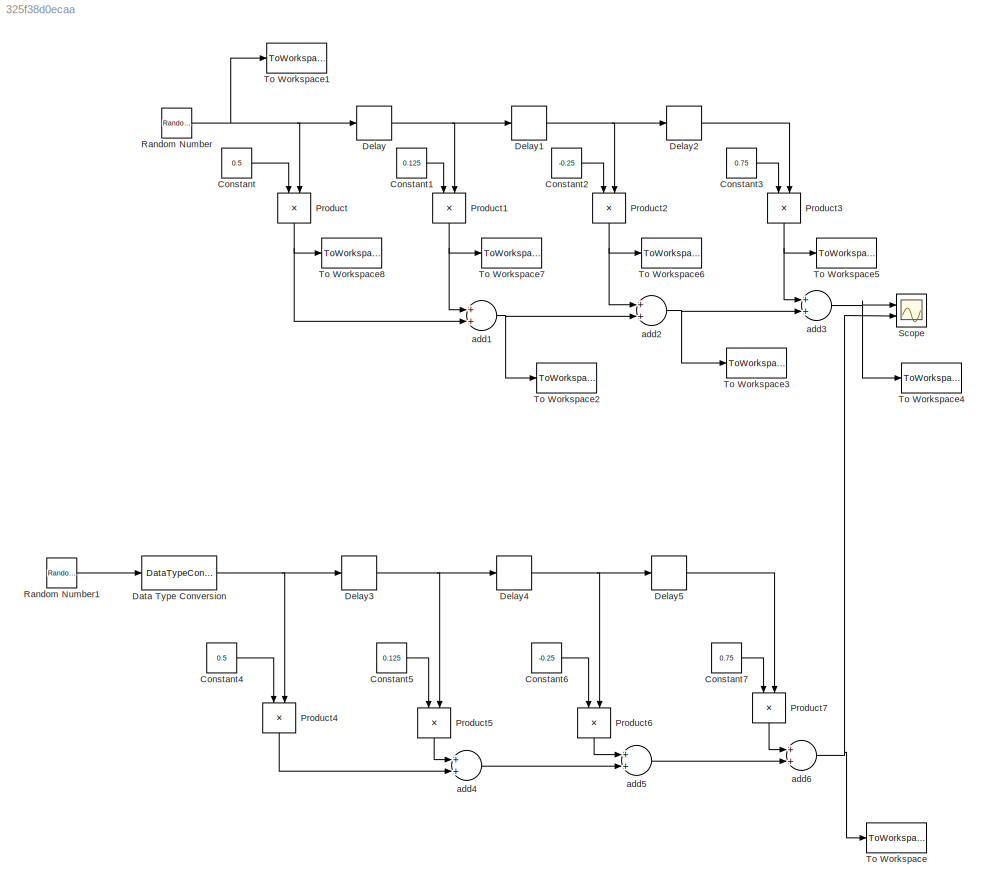
MODEL slx_325f38d0ecaa
KIND model
CONFIG AbsTol = auto
CONFIG EnableMultiTasking = off
CONFIG FixedStep = auto
CONFIG MaxStep = auto
CONFIG MinStep = auto
CONFIG RelTol = 1e-3
CONFIG SampleTimeConstraint = Unconstrained
CONFIG Solver = VariableStepAuto
CONFIG SolverName = VariableStepAuto
CONFIG StartTime = 0.0
CONFIG StopTime = 10.0
BLOCK [Constant] Constant
  Value = 0.5
BLOCK [Constant] Constant1
  Value = 0.125
BLOCK [Constant] Constant2
  Value = -0.25
BLOCK [Constant] Constant3
  Value = 0.75
BLOCK [Constant] Constant4
  OutDataTypeStr = fixdt(0,1,1)
  Value = 0.5
BLOCK [Constant] Constant5
  OutDataTypeStr = fixdt(0,3,3)
  Value = 0.125
BLOCK [Constant] Constant6
  OutDataTypeStr = fixdt(1,3,2)
  Value = -0.25
BLOCK [Constant] Constant7
  OutDataTypeStr = fixdt(0,2,2)
  Value = 0.75
BLOCK [DataTypeConversion] Data Type Conversion
  OutDataTypeStr = fixdt(1,8,5)
  RndMeth = Floor
  SaturateOnIntegerOverflow = off
BLOCK [Delay] Delay
  DelayLength = 1
  InputPortMap = u0
  Ports = [1, 1]
BLOCK [Delay] Delay1
  DelayLength = 1
  InputPortMap = u0
  Ports = [1, 1]
BLOCK [Delay] Delay2
  DelayLength = 1
  InputPortMap = u0
  Ports = [1, 1]
BLOCK [Delay] Delay3
  DelayLength = 1
  InputPortMap = u0
  Ports = [1, 1]
BLOCK [Delay] Delay4
  DelayLength = 1
  InputPortMap = u0
  Ports = [1, 1]
BLOCK [Delay] Delay5
  DelayLength = 1
  InputPortMap = u0
  Ports = [1, 1]
BLOCK [Product] Product
  InputSameDT = off
  OutDataTypeStr = Inherit: Inherit via internal rule
  Ports = [2, 1]
  RndMeth = Floor
  SaturateOnIntegerOverflow = off
BLOCK [Product] Product1
  InputSameDT = off
  OutDataTypeStr = Inherit: Inherit via internal rule
  Ports = [2, 1]
  RndMeth = Floor
  SaturateOnIntegerOverflow = off
BLOCK [Product] Product2
  InputSameDT = off
  OutDataTypeStr = Inherit: Inherit via internal rule
  Ports = [2, 1]
  RndMeth = Floor
  SaturateOnIntegerOverflow = off
BLOCK [Product] Product3
  InputSameDT = off
  OutDataTypeStr = Inherit: Inherit via internal rule
  Ports = [2, 1]
  RndMeth = Floor
  SaturateOnIntegerOverflow = off
BLOCK [Product] Product4
  InputSameDT = off
  OutDataTypeStr = fixdt(1,8,6)
  Ports = [2, 1]
  RndMeth = Floor
  SaturateOnIntegerOverflow = off
BLOCK [Product] Product5
  InputSameDT = off
  OutDataTypeStr = fixdt(1,8,7)
  Ports = [2, 1]
  RndMeth = Floor
  SaturateOnIntegerOverflow = off
BLOCK [Product] Product6
  InputSameDT = off
  OutDataTypeStr = fixdt(1,8,7)
  Ports = [2, 1]
  RndMeth = Floor
  SaturateOnIntegerOverflow = off
BLOCK [Product] Product7
  InputSameDT = off
  OutDataTypeStr = fixdt(1,8,6)
  Ports = [2, 1]
  RndMeth = Floor
  SaturateOnIntegerOverflow = off
BLOCK [RandomNumber] Random Number
  SampleTime = 0.1
BLOCK [RandomNumber] Random Number1
  SampleTime = 0.1
BLOCK [Scope] Scope
  NumInputPorts = 2
  Ports = [2]
  ScopeSpecificationString = Simulink.scopes.TimeScopeBlockCfg('CurrentConfiguration', extmgr.ConfigurationSet(extmgr.Configuration('Core','General UI',true),extmgr.Configuration('Core','Source UI',true),extmgr.Configuration('Sources','WiredSimulink',true),extmgr.Configuration('Visuals','Time Domain',true,'SerializedDisplays',{struct('MinYLimReal','-2.45281','MaxYLimReal','2.72085','YLabelReal','','MinYLimMag','0.00000','MaxY...<+1359ch>
BLOCK [ToWorkspace] To Workspace
  FixptAsFi = on
  MaxDataPoints = inf
  Ports = [1]
  SampleTime = -1
  Save2DSignal = 3-D array (concatenate along third dimension)
  VariableName = Sout_fixed
BLOCK [ToWorkspace] To Workspace1
  FixptAsFi = on
  MaxDataPoints = inf
  Ports = [1]
  SampleTime = -1
  Save2DSignal = 3-D array (concatenate along third dimension)
  VariableName = Sin
BLOCK [ToWorkspace] To Workspace2
  FixptAsFi = on
  MaxDataPoints = inf
  Ports = [1]
  SampleTime = -1
  Save2DSignal = 3-D array (concatenate along third dimension)
  VariableName = S5
BLOCK [ToWorkspace] To Workspace3
  FixptAsFi = on
  MaxDataPoints = inf
  Ports = [1]
  SampleTime = -1
  Save2DSignal = 3-D array (concatenate along third dimension)
  VariableName = S6
BLOCK [ToWorkspace] To Workspace4
  FixptAsFi = on
  MaxDataPoints = inf
  Ports = [1]
  SampleTime = -1
  Save2DSignal = 3-D array (concatenate along third dimension)
  VariableName = Sout
BLOCK [ToWorkspace] To Workspace5
  FixptAsFi = on
  MaxDataPoints = inf
  Ports = [1]
  SampleTime = -1
  Save2DSignal = 3-D array (concatenate along third dimension)
  VariableName = S4
BLOCK [ToWorkspace] To Workspace6
  FixptAsFi = on
  MaxDataPoints = inf
  Ports = [1]
  SampleTime = -1
  Save2DSignal = 3-D array (concatenate along third dimension)
  VariableName = S3
BLOCK [ToWorkspace] To Workspace7
  FixptAsFi = on
  MaxDataPoints = inf
  Ports = [1]
  SampleTime = -1
  Save2DSignal = 3-D array (concatenate along third dimension)
  VariableName = S2
BLOCK [ToWorkspace] To Workspace8
  FixptAsFi = on
  MaxDataPoints = inf
  Ports = [1]
  SampleTime = -1
  Save2DSignal = 3-D array (concatenate along third dimension)
  VariableName = S1
BLOCK [Sum] add1
  InputSameDT = off
  OutDataTypeStr = Inherit: Inherit via internal rule
  Ports = [2, 1]
  SaturateOnIntegerOverflow = off
BLOCK [Sum] add2
  InputSameDT = off
  OutDataTypeStr = Inherit: Inherit via internal rule
  Ports = [2, 1]
  SaturateOnIntegerOverflow = off
BLOCK [Sum] add3
  InputSameDT = off
  OutDataTypeStr = Inherit: Inherit via internal rule
  Ports = [2, 1]
  SaturateOnIntegerOverflow = off
BLOCK [Sum] add4
  InputSameDT = off
  OutDataTypeStr = fixdt(1,8,6)
  Ports = [2, 1]
  SaturateOnIntegerOverflow = off
BLOCK [Sum] add5
  InputSameDT = off
  OutDataTypeStr = fixdt(1,8,6)
  Ports = [2, 1]
  SaturateOnIntegerOverflow = off
BLOCK [Sum] add6
  InputSameDT = off
  OutDataTypeStr = fixdt(1,8,5)
  Ports = [2, 1]
  SaturateOnIntegerOverflow = off
LINE Constant1:1 -> Product1:1
LINE Constant2:1 -> Product2:1
LINE Constant3:1 -> Product3:1
LINE Constant4:1 -> Product4:1
LINE Constant5:1 -> Product5:1
LINE Constant6:1 -> Product6:1
LINE Constant7:1 -> Product7:1
LINE Constant:1 -> Product:1
NET Data Type Conversion:1 -> Delay3:1, Product4:2
NET Delay1:1 -> Delay2:1, Product2:2
LINE Delay2:1 -> Product3:2
NET Delay3:1 -> Delay4:1, Product5:2
NET Delay4:1 -> Delay5:1, Product6:2
LINE Delay5:1 -> Product7:2
NET Delay:1 -> Delay1:1, Product1:2
NET Product1:1 -> To Workspace7:1, add1:1
NET Product2:1 -> To Workspace6:1, add2:1
NET Product3:1 -> To Workspace5:1, add3:1
LINE Product4:1 -> add4:2
LINE Product5:1 -> add4:1
LINE Product6:1 -> add5:1
LINE Product7:1 -> add6:1
NET Product:1 -> To Workspace8:1, add1:2
LINE Random Number1:1 -> Data Type Conversion:1
NET Random Number:1 -> Delay:1, Product:2, To Workspace1:1
NET add1:1 -> To Workspace2:1, add2:2
NET add2:1 -> To Workspace3:1, add3:2
NET add3:1 -> Scope:1, To Workspace4:1
LINE add4:1 -> add5:2
LINE add5:1 -> add6:2
NET add6:1 -> Scope:2, To Workspace:1
note: NET lines group one-source signal fan-out (src -> all destinations, sorted); 1:1 wires keep LINE
